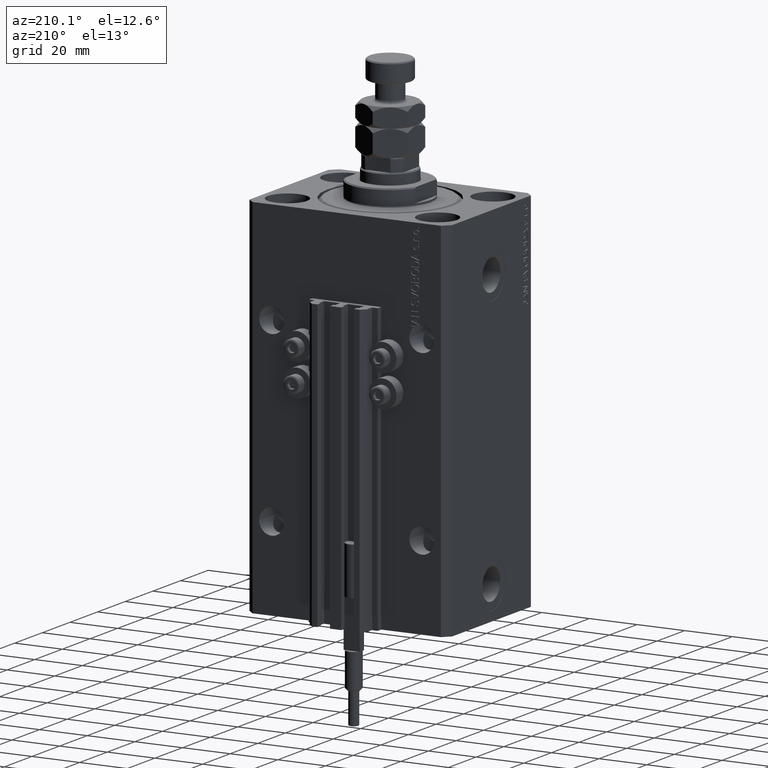
[diagram: clean part render]
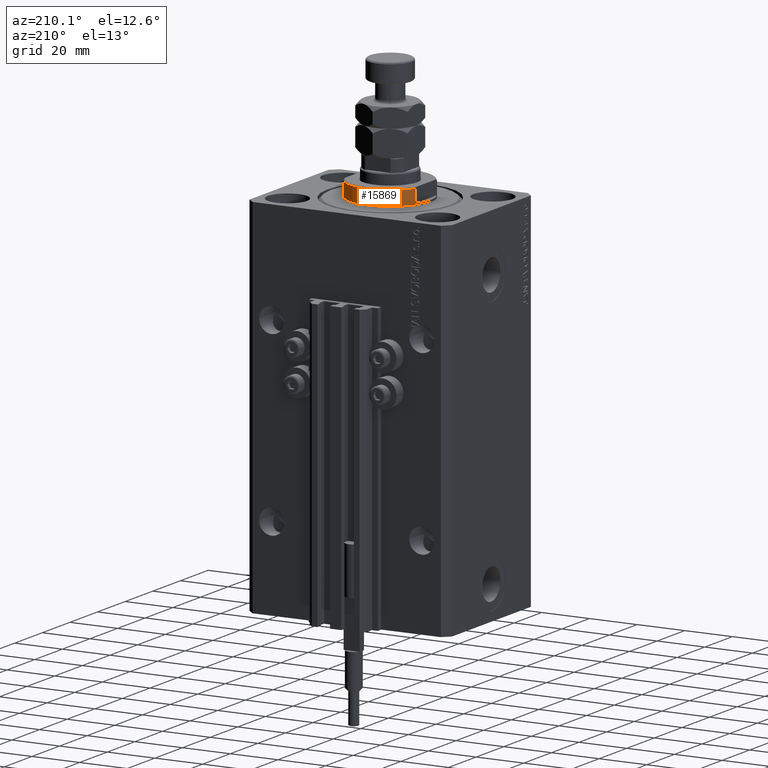
[diagram: same view with one face highlighted and labeled with its STEP entity id]
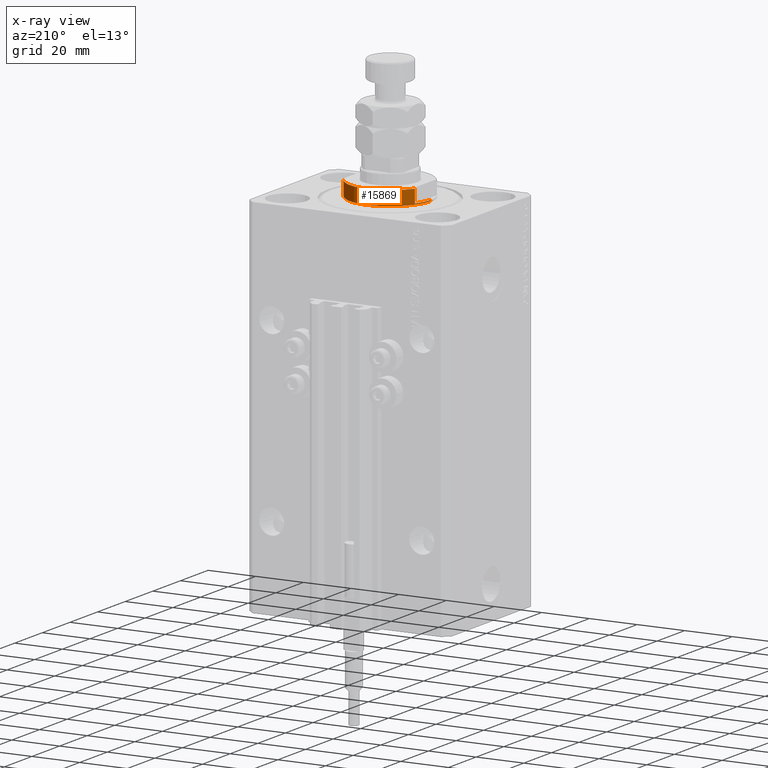
[diagram: x-ray of the same camera — body ghosted, the highlighted face saturated]
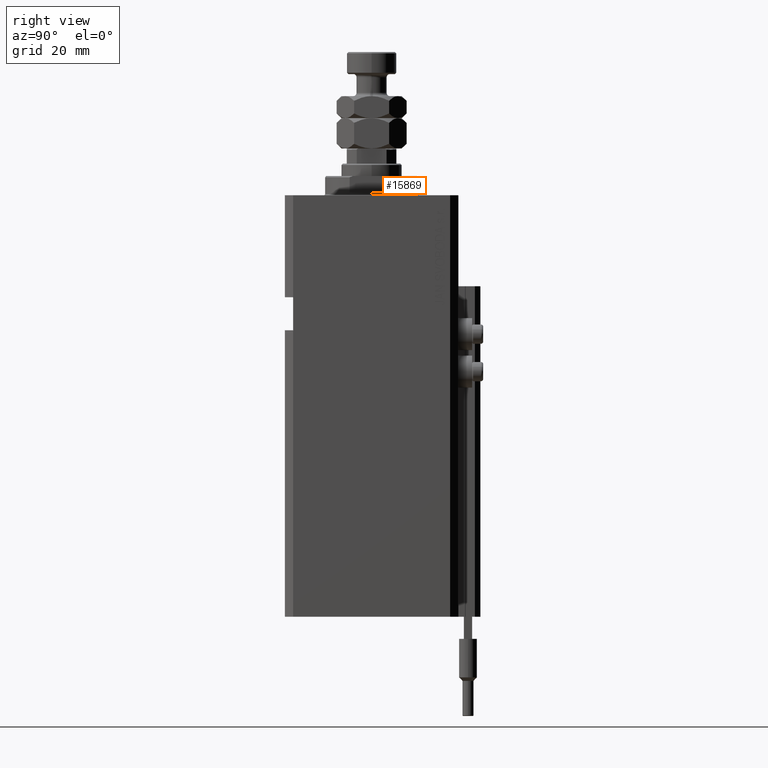
[diagram: same view with one face highlighted and labeled with its STEP entity id]
A machine part, auxiliary view. The second image highlights one B-rep face of the part: STEP entity #15869.
The next image is the same camera in x-ray: the body ghosted, the highlighted face saturated — about 0% of this face is hidden behind the body in this view.
A second angle (right view) of the same face is appended — the face is thin or edge-on in the first view.
In plain terms, the highlighted cylindrical surface (partial cylindrical patch) has radius 17 mm, axis along (0, 0, -1).
Its self-contained STEP definition (entity closure, byte-faithful):
#1558 = VERTEX_POINT ( 'NONE', #20194 ) ;
#1757 = EDGE_LOOP ( 'NONE', ( #18659, #35556, #26550, #11418, #24773, #41022, #17440, #34405 ) ) ;
#3024 = EDGE_CURVE ( 'NONE', #41234, #33879, #28525, .T. ) ;
#4805 = CARTESIAN_POINT ( 'NONE',  ( 0.000000000000000000, 0.000000000000000000, -6.500000000000013323 ) ) ;
#4957 = DIRECTION ( 'NONE',  ( -0.000000000000000000, -0.000000000000000000, -1.000000000000000000 ) ) ;
#5006 = CARTESIAN_POINT ( 'NONE',  ( 15.00000000000000000, 8.000000000000001776, -7.000000000000000000 ) ) ;
#5924 = EDGE_CURVE ( 'NONE', #11159, #43102, #50376, .T. ) ;
#7090 = DIRECTION ( 'NONE',  ( -0.000000000000000000, -0.000000000000000000, 1.000000000000000000 ) ) ;
#8200 = DIRECTION ( 'NONE',  ( -0.000000000000000000, -0.000000000000000000, 1.000000000000000000 ) ) ;
#8535 = DIRECTION ( 'NONE',  ( 1.000000000000000000, 0.000000000000000000, 0.000000000000000000 ) ) ;
#8891 = AXIS2_PLACEMENT_3D ( 'NONE', #19515, #4957, #8535 ) ;
#9251 = AXIS2_PLACEMENT_3D ( 'NONE', #29100, #32932, #44699 ) ;
#9860 = EDGE_CURVE ( 'NONE', #41234, #11159, #27458, .T. ) ;
#10190 = VECTOR ( 'NONE', #46551, 1000.000000000000000 ) ;
#10492 = VECTOR ( 'NONE', #8200, 1000.000000000000000 ) ;
#11159 = VERTEX_POINT ( 'NONE', #30290 ) ;
#11418 = ORIENTED_EDGE ( 'NONE', *, *, #14393, .F. ) ;
#12091 = CARTESIAN_POINT ( 'NONE',  ( -17.00000000000000000, 2.081899558550500280E-15, -1.000000000000000000 ) ) ;
#14393 = EDGE_CURVE ( 'NONE', #28834, #1558, #36065, .T. ) ;
#15473 = CARTESIAN_POINT ( 'NONE',  ( 0.000000000000000000, 0.000000000000000000, -1.000000000000000000 ) ) ;
#15869 = ADVANCED_FACE ( 'NONE', ( #16827 ), #37032, .T. ) ;
#16548 = DIRECTION ( 'NONE',  ( -1.000000000000000000, 0.000000000000000000, 0.000000000000000000 ) ) ;
#16827 = FACE_OUTER_BOUND ( 'NONE', #1757, .T. ) ;
#17440 = ORIENTED_EDGE ( 'NONE', *, *, #9860, .T. ) ;
#18659 = ORIENTED_EDGE ( 'NONE', *, *, #41994, .F. ) ;
#19515 = CARTESIAN_POINT ( 'NONE',  ( 0.000000000000000000, 0.000000000000000000, -0.4999999999999995559 ) ) ;
#20194 = CARTESIAN_POINT ( 'NONE',  ( 17.00000000000000000, 0.000000000000000000, -0.4999999999999995559 ) ) ;
#21275 = DIRECTION ( 'NONE',  ( 0.000000000000000000, 0.000000000000000000, -1.000000000000000000 ) ) ;
#22754 = AXIS2_PLACEMENT_3D ( 'NONE', #15473, #25572, #30148 ) ;
#23345 = VECTOR ( 'NONE', #7090, 1000.000000000000000 ) ;
#23919 = DIRECTION ( 'NONE',  ( -0.000000000000000000, -0.000000000000000000, 1.000000000000000000 ) ) ;
#24773 = ORIENTED_EDGE ( 'NONE', *, *, #42388, .F. ) ;
#25181 = CIRCLE ( 'NONE', #46399, 17.00000000000000000 ) ;
#25209 = EDGE_CURVE ( 'NONE', #47872, #43862, #42115, .T. ) ;
#25572 = DIRECTION ( 'NONE',  ( 0.000000000000000000, 0.000000000000000000, -1.000000000000000000 ) ) ;
#26049 = CARTESIAN_POINT ( 'NONE',  ( 17.00000000000000000, 0.000000000000000000, -1.000000000000000000 ) ) ;
#26550 = ORIENTED_EDGE ( 'NONE', *, *, #42670, .T. ) ;
#26873 = CARTESIAN_POINT ( 'NONE',  ( -15.00000000000000000, 8.000000000000001776, -7.000000000000000000 ) ) ;
#27458 = CIRCLE ( 'NONE', #32345, 17.00000000000000000 ) ;
#27556 = DIRECTION ( 'NONE',  ( 0.000000000000000000, 0.000000000000000000, 1.000000000000000000 ) ) ;
#28495 = CIRCLE ( 'NONE', #8891, 17.00000000000000000 ) ;
#28525 = LINE ( 'NONE', #5006, #32941 ) ;
#28834 = VERTEX_POINT ( 'NONE', #26049 ) ;
#29100 = CARTESIAN_POINT ( 'NONE',  ( 0.000000000000000000, 0.000000000000000000, -7.000000000000000000 ) ) ;
#29941 = CARTESIAN_POINT ( 'NONE',  ( -17.00000000000000000, 2.081899558550500280E-15, -0.4999999999999995559 ) ) ;
#30148 = DIRECTION ( 'NONE',  ( -1.000000000000000000, 0.000000000000000000, 0.000000000000000000 ) ) ;
#30290 = CARTESIAN_POINT ( 'NONE',  ( -15.00000000000000000, 8.000000000000001776, -6.500000000000013323 ) ) ;
#32345 = AXIS2_PLACEMENT_3D ( 'NONE', #4805, #27556, #16548 ) ;
#32932 = DIRECTION ( 'NONE',  ( -0.000000000000000000, -0.000000000000000000, 1.000000000000000000 ) ) ;
#32941 = VECTOR ( 'NONE', #23919, 1000.000000000000000 ) ;
#33292 = CARTESIAN_POINT ( 'NONE',  ( 0.000000000000000000, 0.000000000000000000, -1.000000000000000000 ) ) ;
#33879 = VERTEX_POINT ( 'NONE', #33894 ) ;
#33894 = CARTESIAN_POINT ( 'NONE',  ( 14.99999999999999645, 8.000000000000003553, -1.000000000000000000 ) ) ;
#34405 = ORIENTED_EDGE ( 'NONE', *, *, #5924, .T. ) ;
#35316 = CARTESIAN_POINT ( 'NONE',  ( -14.99999999999999645, 8.000000000000003553, -1.000000000000000000 ) ) ;
#35556 = ORIENTED_EDGE ( 'NONE', *, *, #25209, .T. ) ;
#35596 = CARTESIAN_POINT ( 'NONE',  ( 15.00000000000000000, 8.000000000000001776, -6.500000000000013323 ) ) ;
#35821 = CIRCLE ( 'NONE', #22754, 17.00000000000000000 ) ;
#36065 = LINE ( 'NONE', #39384, #10492 ) ;
#37032 = CYLINDRICAL_SURFACE ( 'NONE', #9251, 17.00000000000000000 ) ;
#38280 = CARTESIAN_POINT ( 'NONE',  ( -17.00000000000000000, 2.081899558550500280E-15, -7.000000000000000000 ) ) ;
#39384 = CARTESIAN_POINT ( 'NONE',  ( 17.00000000000000000, 0.000000000000000000, -7.000000000000000000 ) ) ;
#40448 = DIRECTION ( 'NONE',  ( -1.000000000000000000, 0.000000000000000000, 0.000000000000000000 ) ) ;
#41022 = ORIENTED_EDGE ( 'NONE', *, *, #3024, .F. ) ;
#41234 = VERTEX_POINT ( 'NONE', #35596 ) ;
#41994 = EDGE_CURVE ( 'NONE', #47872, #43102, #25181, .T. ) ;
#42115 = LINE ( 'NONE', #38280, #23345 ) ;
#42388 = EDGE_CURVE ( 'NONE', #33879, #28834, #35821, .T. ) ;
#42670 = EDGE_CURVE ( 'NONE', #43862, #1558, #28495, .T. ) ;
#43102 = VERTEX_POINT ( 'NONE', #35316 ) ;
#43862 = VERTEX_POINT ( 'NONE', #29941 ) ;
#44699 = DIRECTION ( 'NONE',  ( 1.000000000000000000, 0.000000000000000000, 0.000000000000000000 ) ) ;
#46399 = AXIS2_PLACEMENT_3D ( 'NONE', #33292, #21275, #40448 ) ;
#46551 = DIRECTION ( 'NONE',  ( -0.000000000000000000, -0.000000000000000000, 1.000000000000000000 ) ) ;
#47872 = VERTEX_POINT ( 'NONE', #12091 ) ;
#50376 = LINE ( 'NONE', #26873, #10190 ) ;